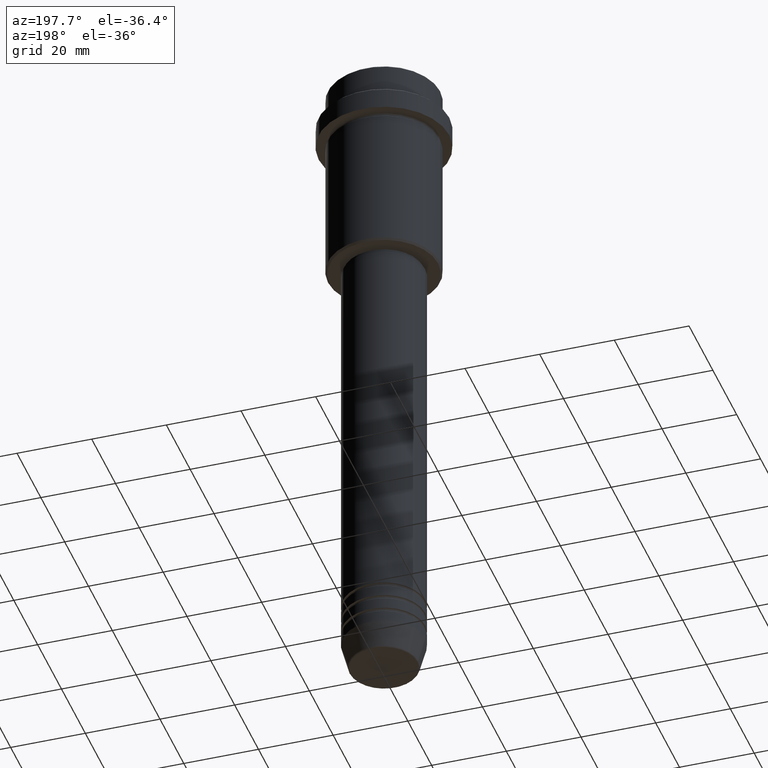
[diagram: clean part render]
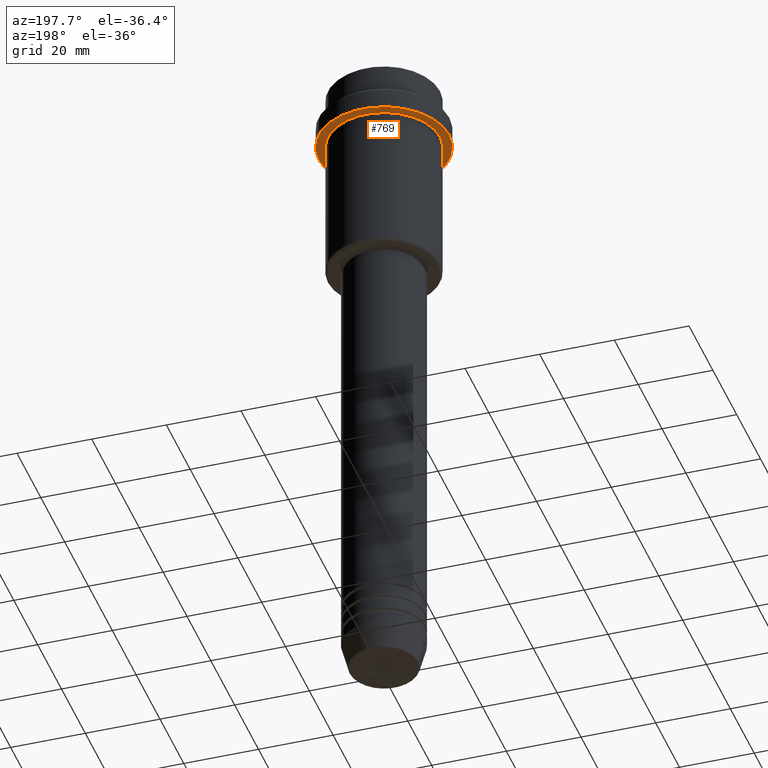
[diagram: same view with one face highlighted and labeled with its STEP entity id]
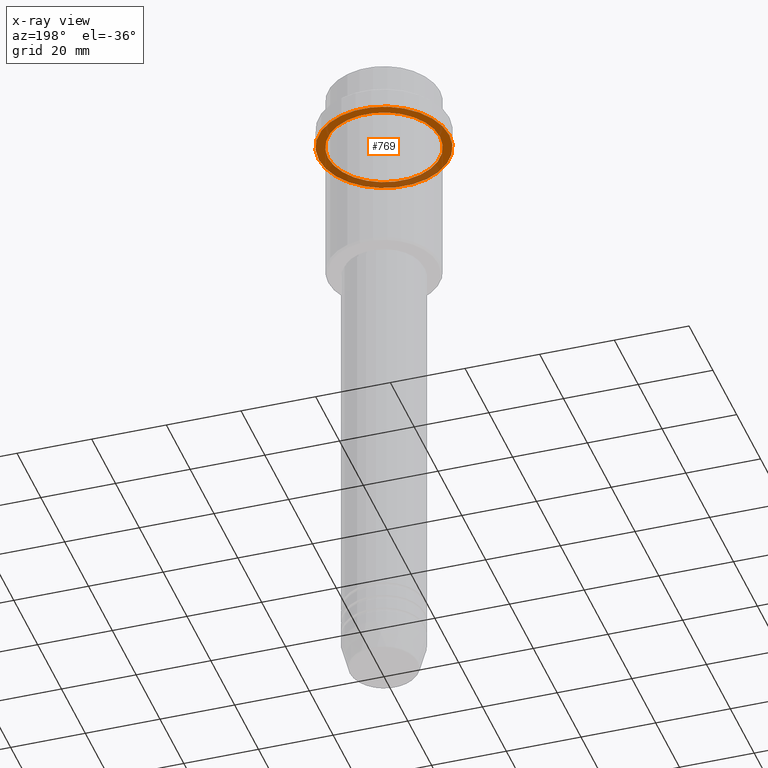
[diagram: x-ray of the same camera — body ghosted, the highlighted face saturated]
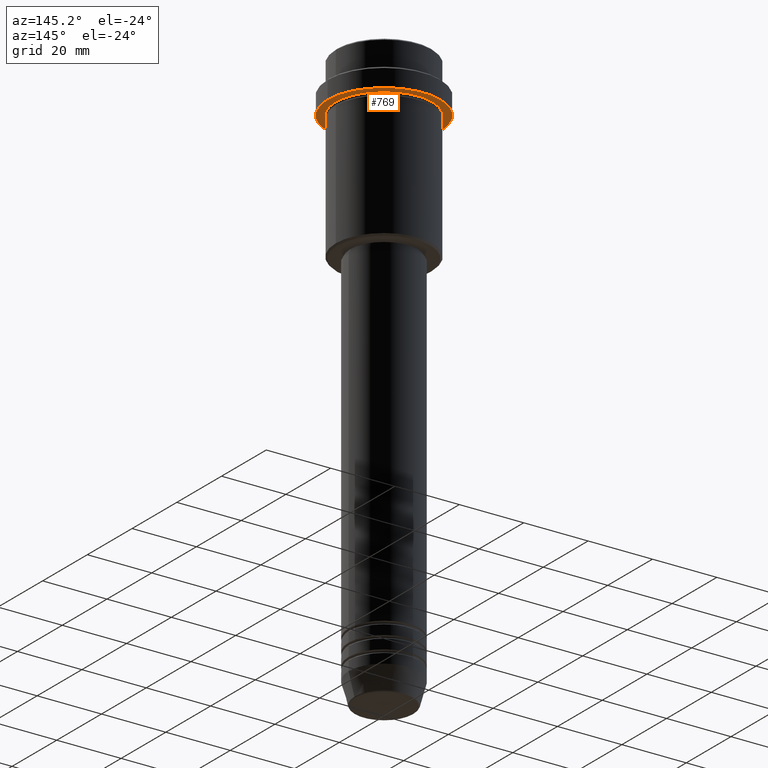
[diagram: same view with one face highlighted and labeled with its STEP entity id]
A machine part, auxiliary view. The second image highlights one B-rep face of the part: STEP entity #769.
The next image is the same camera in x-ray: the body ghosted, the highlighted face saturated — about 32% of this face is hidden behind the body in this view.
A second angle (auxiliary view) of the same face is appended — the face is thin or edge-on in the first view.
In plain terms, the highlighted planar face has unit normal (0, 0, -1).
Its self-contained STEP definition (entity closure, byte-faithful):
#130 = CIRCLE ( 'NONE', #1136, 17.50000000000000000 ) ;
#140 = VERTEX_POINT ( 'NONE', #253 ) ;
#155 = AXIS2_PLACEMENT_3D ( 'NONE', #1106, #345, #1029 ) ;
#205 = DIRECTION ( 'NONE',  ( -0.000000000000000000, -0.000000000000000000, 1.000000000000000000 ) ) ;
#225 = CIRCLE ( 'NONE', #443, 14.99999999999999467 ) ;
#253 = CARTESIAN_POINT ( 'NONE',  ( 14.99999999999999467, 1.836970198721029194E-15, -15.00000000000000000 ) ) ;
#256 = VERTEX_POINT ( 'NONE', #1361 ) ;
#279 = DIRECTION ( 'NONE',  ( -1.000000000000000000, 0.000000000000000000, -0.000000000000000000 ) ) ;
#290 = EDGE_CURVE ( 'NONE', #140, #348, #1386, .T. ) ;
#296 = DIRECTION ( 'NONE',  ( 0.000000000000000000, 0.000000000000000000, -1.000000000000000000 ) ) ;
#312 = DIRECTION ( 'NONE',  ( -1.000000000000000000, 0.000000000000000000, 0.000000000000000000 ) ) ;
#345 = DIRECTION ( 'NONE',  ( -0.000000000000000000, -0.000000000000000000, 1.000000000000000000 ) ) ;
#346 = CARTESIAN_POINT ( 'NONE',  ( 0.000000000000000000, 0.000000000000000000, -15.00000000000000000 ) ) ;
#348 = VERTEX_POINT ( 'NONE', #978 ) ;
#443 = AXIS2_PLACEMENT_3D ( 'NONE', #1088, #205, #312 ) ;
#539 = AXIS2_PLACEMENT_3D ( 'NONE', #627, #296, #279 ) ;
#540 = CIRCLE ( 'NONE', #155, 17.50000000000000000 ) ;
#551 = EDGE_CURVE ( 'NONE', #256, #700, #130, .T. ) ;
#563 = DIRECTION ( 'NONE',  ( -0.000000000000000000, -0.000000000000000000, 1.000000000000000000 ) ) ;
#627 = CARTESIAN_POINT ( 'NONE',  ( 0.000000000000000000, 17.50000000000000000, -15.00000000000000000 ) ) ;
#700 = VERTEX_POINT ( 'NONE', #961 ) ;
#722 = ORIENTED_EDGE ( 'NONE', *, *, #290, .T. ) ;
#742 = EDGE_LOOP ( 'NONE', ( #1190, #987 ) ) ;
#768 = AXIS2_PLACEMENT_3D ( 'NONE', #1027, #813, #1245 ) ;
#769 = ADVANCED_FACE ( 'NONE', ( #1379, #950 ), #1273, .T. ) ;
#813 = DIRECTION ( 'NONE',  ( -0.000000000000000000, -0.000000000000000000, 1.000000000000000000 ) ) ;
#950 = FACE_OUTER_BOUND ( 'NONE', #742, .T. ) ;
#961 = CARTESIAN_POINT ( 'NONE',  ( -17.50000000000000000, 2.143131898507868248E-15, -15.00000000000000000 ) ) ;
#978 = CARTESIAN_POINT ( 'NONE',  ( -14.99999999999999467, 0.000000000000000000, -15.00000000000000000 ) ) ;
#987 = ORIENTED_EDGE ( 'NONE', *, *, #1054, .F. ) ;
#1027 = CARTESIAN_POINT ( 'NONE',  ( 0.000000000000000000, 0.000000000000000000, -15.00000000000000000 ) ) ;
#1029 = DIRECTION ( 'NONE',  ( 1.000000000000000000, 0.000000000000000000, 0.000000000000000000 ) ) ;
#1054 = EDGE_CURVE ( 'NONE', #700, #256, #540, .T. ) ;
#1088 = CARTESIAN_POINT ( 'NONE',  ( 0.000000000000000000, 0.000000000000000000, -15.00000000000000000 ) ) ;
#1106 = CARTESIAN_POINT ( 'NONE',  ( 0.000000000000000000, 0.000000000000000000, -15.00000000000000000 ) ) ;
#1128 = DIRECTION ( 'NONE',  ( 1.000000000000000000, 0.000000000000000000, 0.000000000000000000 ) ) ;
#1136 = AXIS2_PLACEMENT_3D ( 'NONE', #346, #563, #1128 ) ;
#1190 = ORIENTED_EDGE ( 'NONE', *, *, #551, .F. ) ;
#1245 = DIRECTION ( 'NONE',  ( -1.000000000000000000, 0.000000000000000000, 0.000000000000000000 ) ) ;
#1273 = PLANE ( 'NONE',  #539 ) ;
#1305 = EDGE_LOOP ( 'NONE', ( #1416, #722 ) ) ;
#1325 = EDGE_CURVE ( 'NONE', #348, #140, #225, .T. ) ;
#1361 = CARTESIAN_POINT ( 'NONE',  ( 17.50000000000000000, 0.000000000000000000, -15.00000000000000000 ) ) ;
#1379 = FACE_BOUND ( 'NONE', #1305, .T. ) ;
#1386 = CIRCLE ( 'NONE', #768, 14.99999999999999467 ) ;
#1416 = ORIENTED_EDGE ( 'NONE', *, *, #1325, .T. ) ;